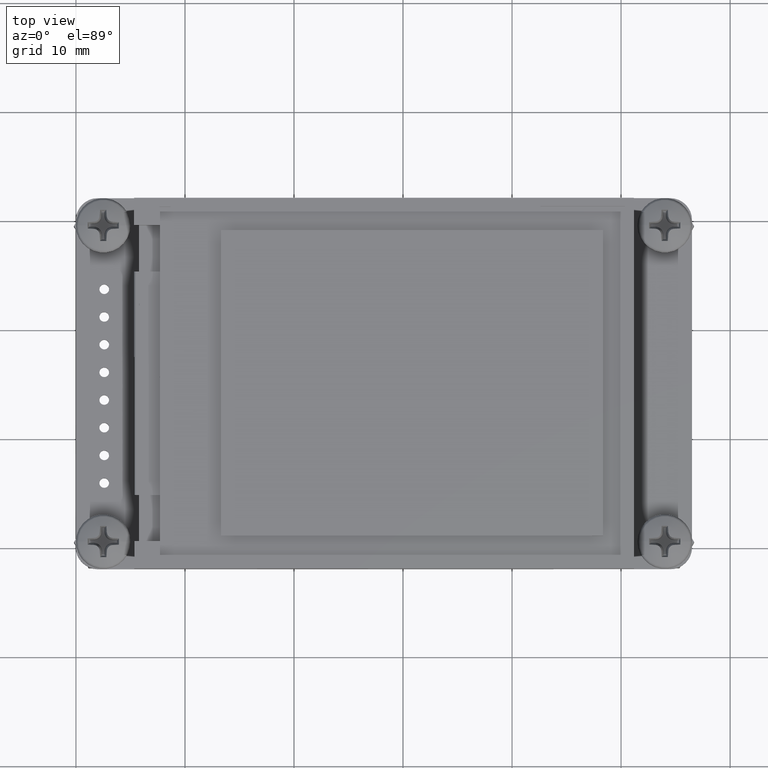
[diagram: clean part render]
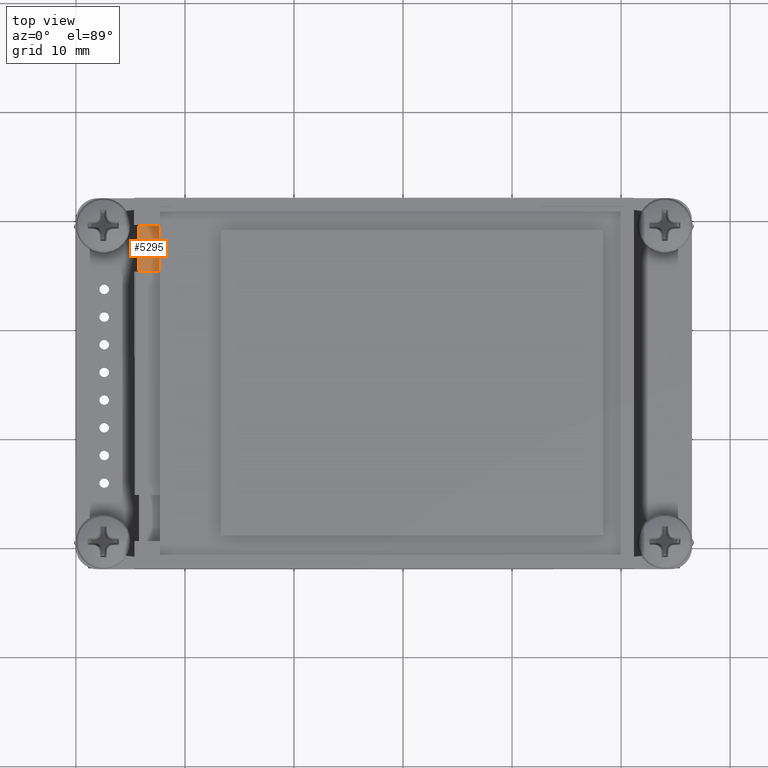
[diagram: same view with one face highlighted and labeled with its STEP entity id]
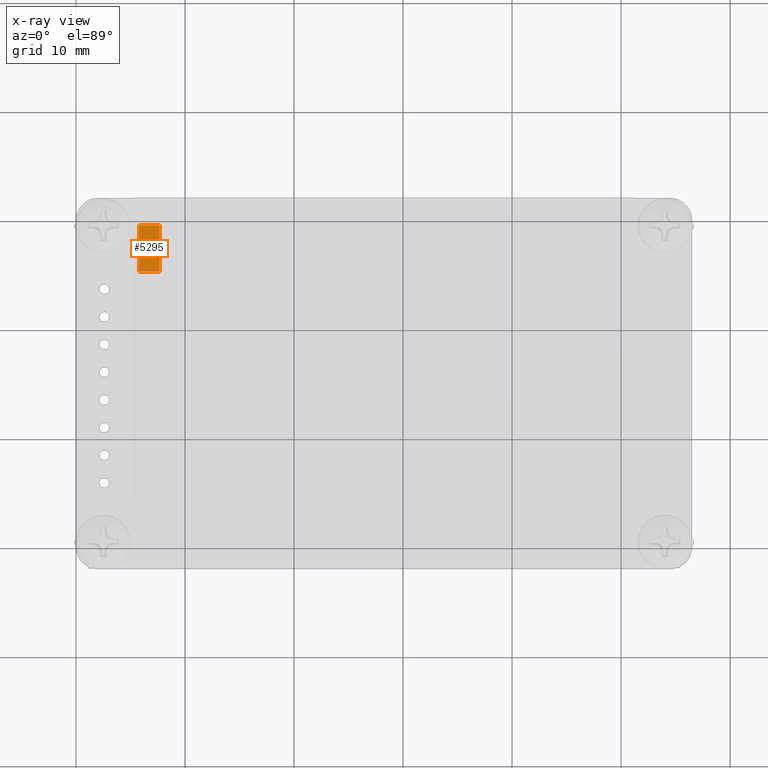
[diagram: x-ray of the same camera — body ghosted, the highlighted face saturated]
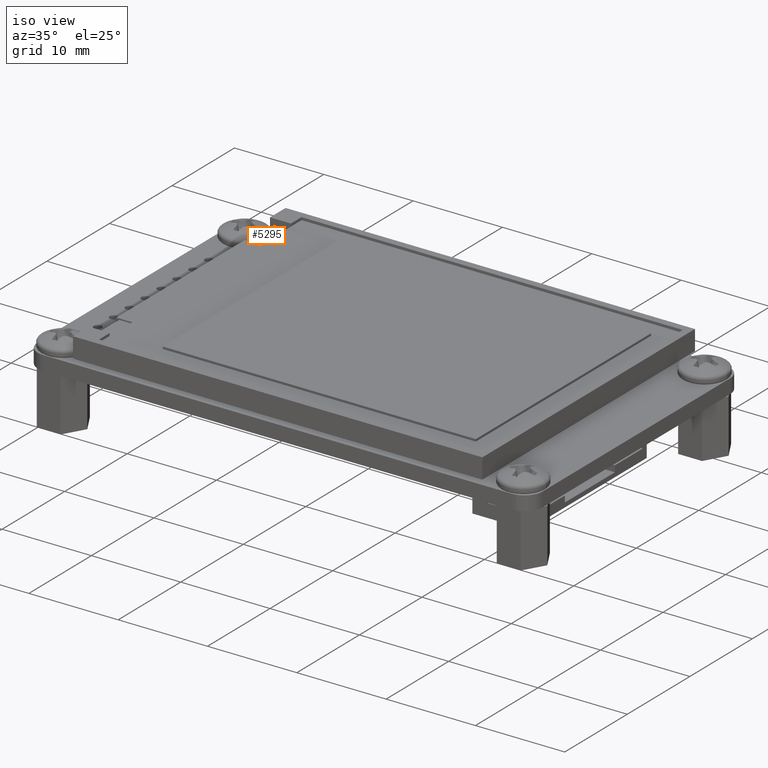
[diagram: same view with one face highlighted and labeled with its STEP entity id]
A machine part, top view. The second image highlights one B-rep face of the part: STEP entity #5295.
The next image is the same camera in x-ray: the body ghosted, the highlighted face saturated — about 0% of this face is hidden behind the body in this view.
A second angle (iso view) of the same face is appended — the face is thin or edge-on in the first view.
In plain terms, the highlighted planar face has unit normal (0, 0, 1).
Its self-contained STEP definition (entity closure, byte-faithful):
#4509=DIRECTION('',(0.E0,1.E0,0.E0));
#4510=VECTOR('',#4509,1.901983538123E0);
#4511=CARTESIAN_POINT('',(-1.025E1,-2.503198353812E1,1.45E0));
#4512=LINE('',#4511,#4510);
#4516=DIRECTION('',(1.E0,0.E0,0.E0));
#4517=VECTOR('',#4516,4.25E0);
#4518=CARTESIAN_POINT('',(-1.45E1,-2.503198353812E1,1.45E0));
#4519=LINE('',#4518,#4517);
#4523=DIRECTION('',(0.E0,-1.E0,0.E0));
#4524=VECTOR('',#4523,1.901983538123E0);
#4525=CARTESIAN_POINT('',(-1.45E1,-2.313E1,1.45E0));
#4526=LINE('',#4525,#4524);
#4530=DIRECTION('',(-1.E0,0.E0,0.E0));
#4531=VECTOR('',#4530,4.25E0);
#4532=CARTESIAN_POINT('',(-1.025E1,-2.313E1,1.45E0));
#4533=LINE('',#4532,#4531);
#4848=CARTESIAN_POINT('',(-1.45E1,-2.313E1,1.45E0));
#4849=VERTEX_POINT('',#4848);
#4860=CARTESIAN_POINT('',(-1.45E1,-2.503198353812E1,1.45E0));
#4861=VERTEX_POINT('',#4860);
#4902=CARTESIAN_POINT('',(-1.025E1,-2.503198353812E1,1.45E0));
#4903=CARTESIAN_POINT('',(-1.025E1,-2.313E1,1.45E0));
#4904=VERTEX_POINT('',#4902);
#4905=VERTEX_POINT('',#4903);
#5282=CARTESIAN_POINT('',(0.E0,0.E0,1.45E0));
#5283=DIRECTION('',(0.E0,0.E0,1.E0));
#5284=DIRECTION('',(1.E0,0.E0,0.E0));
#5285=AXIS2_PLACEMENT_3D('',#5282,#5283,#5284);
#5286=PLANE('',#5285);
#5287=ORIENTED_EDGE('',*,*,#5254,.F.);
#5289=ORIENTED_EDGE('',*,*,#5288,.F.);
#5291=ORIENTED_EDGE('',*,*,#5290,.F.);
#5292=ORIENTED_EDGE('',*,*,#5234,.F.);
#5293=EDGE_LOOP('',(#5287,#5289,#5291,#5292));
#5294=FACE_OUTER_BOUND('',#5293,.F.);
#5295=ADVANCED_FACE('',(#5294),#5286,.T.);
#5234=EDGE_CURVE('',#4905,#4849,#4533,.T.);
#5254=EDGE_CURVE('',#4904,#4905,#4512,.T.);
#5288=EDGE_CURVE('',#4861,#4904,#4519,.T.);
#5290=EDGE_CURVE('',#4849,#4861,#4526,.T.);